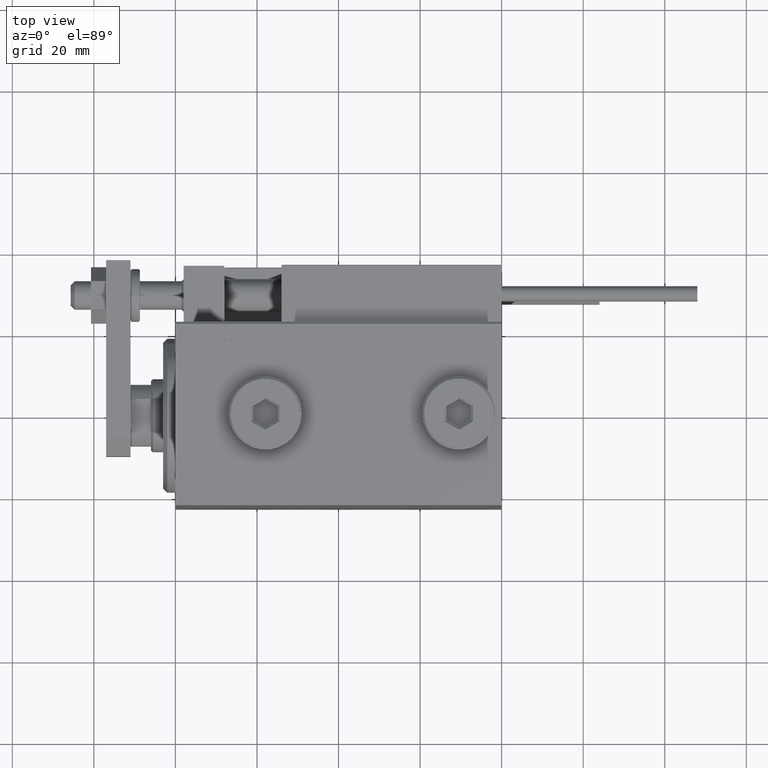
[diagram: clean part render]
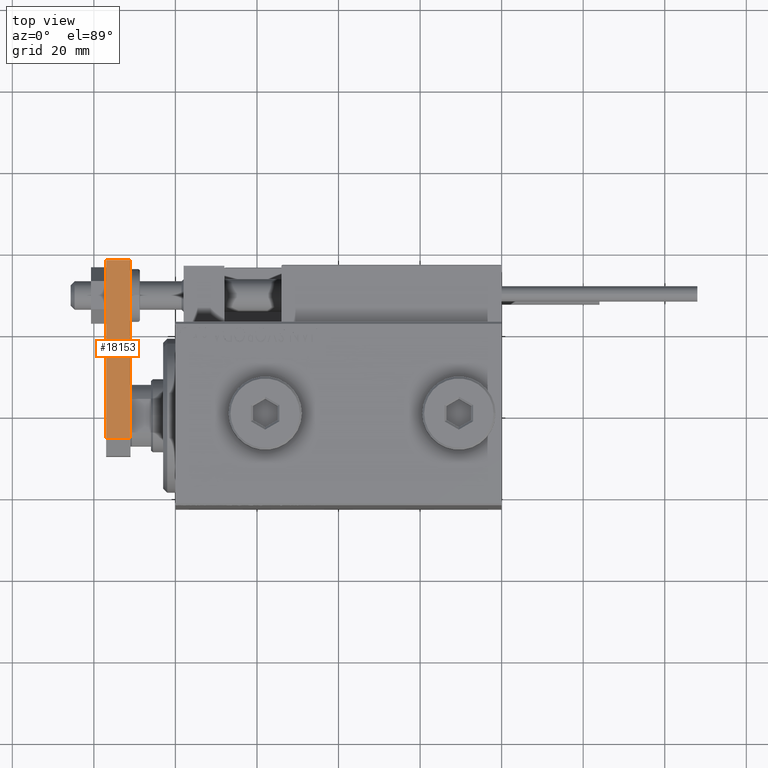
[diagram: same view with one face highlighted and labeled with its STEP entity id]
A machine part, top view. The second image highlights one B-rep face of the part: STEP entity #18153.
In plain terms, the highlighted planar face has unit normal (-0, -0, -1).
Its self-contained STEP definition (entity closure, byte-faithful):
#737 = EDGE_LOOP ( 'NONE', ( #2337, #31090, #11784, #6584 ) ) ;
#2337 = ORIENTED_EDGE ( 'NONE', *, *, #17281, .F. ) ;
#2838 = EDGE_CURVE ( 'NONE', #47804, #14743, #21797, .T. ) ;
#3607 = EDGE_CURVE ( 'NONE', #18854, #14743, #15291, .T. ) ;
#6530 = VECTOR ( 'NONE', #21283, 1000.000000000000000 ) ;
#6584 = ORIENTED_EDGE ( 'NONE', *, *, #3607, .F. ) ;
#10344 = DIRECTION ( 'NONE',  ( -0.000000000000000000, -0.000000000000000000, -1.000000000000000000 ) ) ;
#11464 = CARTESIAN_POINT ( 'NONE',  ( 10.00000000000000178, 48.00000000000000000, 6.000000000000000000 ) ) ;
#11784 = ORIENTED_EDGE ( 'NONE', *, *, #2838, .T. ) ;
#12670 = CARTESIAN_POINT ( 'NONE',  ( 10.00000000000000533, 0.000000000000000000, 6.000000000000000000 ) ) ;
#14743 = VERTEX_POINT ( 'NONE', #50168 ) ;
#15291 = LINE ( 'NONE', #31174, #51507 ) ;
#15757 = VERTEX_POINT ( 'NONE', #29039 ) ;
#17281 = EDGE_CURVE ( 'NONE', #15757, #18854, #20911, .T. ) ;
#17600 = PLANE ( 'NONE',  #42187 ) ;
#18153 = ADVANCED_FACE ( 'NONE', ( #48880 ), #17600, .F. ) ;
#18854 = VERTEX_POINT ( 'NONE', #11464 ) ;
#20911 = LINE ( 'NONE', #25086, #24672 ) ;
#21283 = DIRECTION ( 'NONE',  ( -7.228014483236695816E-17, 1.000000000000000000, 0.000000000000000000 ) ) ;
#21797 = LINE ( 'NONE', #33278, #6530 ) ;
#24672 = VECTOR ( 'NONE', #44354, 1000.000000000000000 ) ;
#25086 = CARTESIAN_POINT ( 'NONE',  ( 10.00000000000000533, 0.000000000000000000, 6.000000000000000000 ) ) ;
#28558 = DIRECTION ( 'NONE',  ( -1.000000000000000000, -7.228014483236695816E-17, 0.000000000000000000 ) ) ;
#29039 = CARTESIAN_POINT ( 'NONE',  ( 10.00000000000000533, 4.239999999999986890, 6.000000000000000000 ) ) ;
#31090 = ORIENTED_EDGE ( 'NONE', *, *, #44814, .T. ) ;
#31174 = CARTESIAN_POINT ( 'NONE',  ( 10.00000000000000178, 48.00000000000000000, 6.000000000000000000 ) ) ;
#31894 = VECTOR ( 'NONE', #49780, 1000.000000000000000 ) ;
#33124 = LINE ( 'NONE', #40933, #31894 ) ;
#33278 = CARTESIAN_POINT ( 'NONE',  ( 10.00000000000000533, 0.000000000000000000, 0.000000000000000000 ) ) ;
#38965 = CARTESIAN_POINT ( 'NONE',  ( 10.00000000000000533, 4.239999999999986890, 0.000000000000000000 ) ) ;
#40933 = CARTESIAN_POINT ( 'NONE',  ( 10.00000000000000533, 4.239999999999986890, 6.000000000000000000 ) ) ;
#42187 = AXIS2_PLACEMENT_3D ( 'NONE', #12670, #28558, #49135 ) ;
#44354 = DIRECTION ( 'NONE',  ( -7.228014483236695816E-17, 1.000000000000000000, 0.000000000000000000 ) ) ;
#44814 = EDGE_CURVE ( 'NONE', #15757, #47804, #33124, .T. ) ;
#47804 = VERTEX_POINT ( 'NONE', #38965 ) ;
#48880 = FACE_OUTER_BOUND ( 'NONE', #737, .T. ) ;
#49135 = DIRECTION ( 'NONE',  ( 7.228014483236695816E-17, -1.000000000000000000, 0.000000000000000000 ) ) ;
#49780 = DIRECTION ( 'NONE',  ( 0.000000000000000000, 0.000000000000000000, -1.000000000000000000 ) ) ;
#50168 = CARTESIAN_POINT ( 'NONE',  ( 10.00000000000000178, 48.00000000000000000, 0.000000000000000000 ) ) ;
#51507 = VECTOR ( 'NONE', #10344, 1000.000000000000000 ) ;